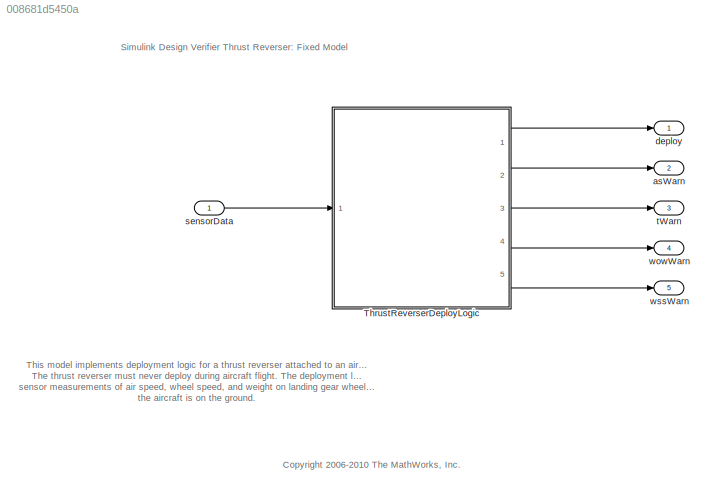
MODEL slx_008681d5450a
KIND model
CONFIG AbsTol = auto
CONFIG EnableMultiTasking = on
CONFIG FixedStep = .1
CONFIG MaxStep = auto
CONFIG MinStep = auto
CONFIG PreLoadFcn = load sldvdemo_thrust_reverse_bus.mat
CONFIG RelTol = 1e-3
CONFIG SampleTimeConstraint = Unconstrained
CONFIG Solver = FixedStepDiscrete
CONFIG SolverName = FixedStepDiscrete
CONFIG StartTime = 0.0
CONFIG StopTime = 10.0
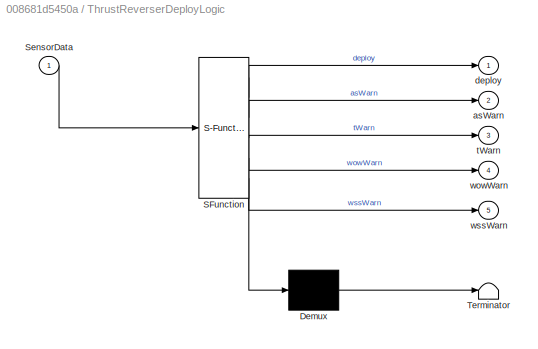
BLOCK [SubSystem] ThrustReverserDeployLogic
  ErrorFcn = Stateflow.Translate.translate
  PermitHierarchicalResolution = ExplicitOnly
  Ports = [1, 5]
  RequestExecContextInheritance = off
  SFBlockType = Chart
  TreatAsAtomicUnit = on
BLOCK [Demux] ThrustReverserDeployLogic/ Demux 
  Outputs = 1
  Ports = [1, 1]
BLOCK [S-Function] ThrustReverserDeployLogic/ SFunction 
  EnableBusSupport = on
  FunctionName = sf_sfun
  PortCounts = [1 6]
  Ports = [1, 6]
  SFcnIsStateOwnerBlock = off
  SFunctionDeploymentMode = off
  Tag = Stateflow S-Function 1
BLOCK [Terminator] ThrustReverserDeployLogic/ Terminator 
BLOCK [Inport] ThrustReverserDeployLogic/SensorData
BLOCK [Outport] ThrustReverserDeployLogic/asWarn
  Port = 2
  VectorParamsAs1DForOutWhenUnconnected = off
BLOCK [Outport] ThrustReverserDeployLogic/deploy
  VectorParamsAs1DForOutWhenUnconnected = off
BLOCK [Outport] ThrustReverserDeployLogic/tWarn
  Port = 3
  VectorParamsAs1DForOutWhenUnconnected = off
BLOCK [Outport] ThrustReverserDeployLogic/wowWarn
  Port = 4
  VectorParamsAs1DForOutWhenUnconnected = off
BLOCK [Outport] ThrustReverserDeployLogic/wssWarn
  Port = 5
  VectorParamsAs1DForOutWhenUnconnected = off
BLOCK [Outport] asWarn
  OutDataTypeStr = boolean
  Port = 2
  PortDimensions = 1
  VectorParamsAs1DForOutWhenUnconnected = off
BLOCK [Outport] deploy
  OutDataTypeStr = boolean
  PortDimensions = 1
  VectorParamsAs1DForOutWhenUnconnected = off
BLOCK [Inport] sensorData
  OutDataTypeStr = Bus: sldvThrustReverseBus
BLOCK [Outport] tWarn
  OutDataTypeStr = boolean
  Port = 3
  PortDimensions = 1
  VectorParamsAs1DForOutWhenUnconnected = off
BLOCK [Outport] wowWarn
  OutDataTypeStr = boolean
  Port = 4
  PortDimensions = 1
  VectorParamsAs1DForOutWhenUnconnected = off
BLOCK [Outport] wssWarn
  OutDataTypeStr = boolean
  Port = 5
  PortDimensions = 1
  VectorParamsAs1DForOutWhenUnconnected = off
ANNOTATION (root): <copyright redacted>
ANNOTATION (root): Simulink Design Verifier Thrust Reverser: Fixed Model
ANNOTATION (root): This model implements deployment logic for a thrust reverser attached to an aircraft engine. The thrust reverser must never deploy during aircraft flight. The deployment logic uses redundant sensor measurements of air speed, wheel speed, and weight on landing gear wheels to confirm the aircraft is on the ground.
LINE ThrustReverserDeployLogic:1 -> deploy:1
LINE ThrustReverserDeployLogic:2 -> asWarn:1
LINE ThrustReverserDeployLogic:3 -> tWarn:1
LINE ThrustReverserDeployLogic:4 -> wowWarn:1
LINE ThrustReverserDeployLogic:5 -> wssWarn:1
LINE sensorData:1 -> ThrustReverserDeployLogic:1
CHART ThrustReverserDeployLogic states=26 transitions=75
  STATE_LABEL 'thrustReversers'
  STATE_LABEL 'undeployed\nen:deploy=0;timer=0;'
  STATE_LABEL 'aboutToBeDeployed\ndu:timer++;'
  STATE_LABEL 'deployed\nen:deploy=1;'
  STATE_LABEL '[(onGround(SensorData.wowSensors) +...\n isRolling(SensorData.wheelSpeedSensors) +...\n airspeedOK(SensorData.airSpeedSensors) >=2) &&...\n throttleOK(SensorData.throttlePositions)]'
  STATE_LABEL '[timer>5]'
  STATE_LABEL '[(onGround(SensorData.wowSensors) +...\n isRolling(SensorData.wheelSpeedSensors) +...\n airspeedOK(SensorData.airSpeedSensors) <=2) ||...\n !throttleOK(SensorData.throttlePositions)]'
  STATE_LABEL '[(onGround(SensorData.wowSensors) +...\n isRolling(SensorData.wheelSpeedSensors) +...\n airspeedOK(SensorData.airSpeedSensors) <=2) ||...\n !throttleOK(SensorData.throttlePositions)]'
  STATE_LABEL 'undeployed\nen:deploy=0;timer=0;'
  STATE_LABEL 'aboutToBeDeployed\ndu:timer++;'
  STATE_LABEL 'deployed\nen:deploy=1;'
  STATE_LABEL 'og = onGround(ww)'
  STATE_LABEL '{\n/* 1st weight on wheel sensor for left gear */\naVarTruthTableCondition_1 = (ww[1]);\n}'
  STATE_LABEL '{\n/* 2nd weight on wheel sensor for left gear */\naVarTruthTableCondition_2 = (ww[2]);\n}'
  STATE_LABEL '{\n/* 1st weight on wheel sensor for right gear */\naVarTruthTableCondition_3 = (ww[3]);\n}'
  STATE_LABEL '{\n/* 2nd weight on wheel sensor for right gear */\naVarTruthTableCondition_4 = (ww[4]);\n}'
  STATE_LABEL '[aVarTruthTableCondition_1 && aVarTruthTableCondition_2 && aVarTruthTableCondition_3 && aVarTruthTableCondition_4]'
  STATE_LABEL '{\n/* Wheels are on the ground */\nog = 1;\n}'
  STATE_LABEL '[!aVarTruthTableCondition_1 && !aVarTruthTableCondition_2 && !aVarTruthTableCondition_3 && !aVarTruthTableCondition_4]'
  STATE_LABEL '{\n/* Wheels are not on the ground */\nog = 0;\n}'
  STATE_LABEL '[aVarTruthTableCondition_1 && aVarTruthTableCondition_2]'
  STATE_LABEL '{\n/* Wheels are on the ground */\nog = 1;\n}'
  STATE_LABEL '{\n/* Broadcast warning that sensors do not all agree */\nsend(wowE,warnings)\n}'
  STATE_LABEL '[aVarTruthTableCondition_3 && aVarTruthTableCondition_4]'
  STATE_LABEL '{\n/* Wheels are on the ground */\nog = 1;\n}'
  STATE_LABEL '{\n/* Broadcast warning that sensors do not all agree */\nsend(wowE,warnings)\n}'
  STATE_LABEL '/* Default */'
  STATE_LABEL '{\n/* Wheels are not on the ground */\nog = 0;\n}'
  STATE_LABEL '{\n/* Broadcast warning that sensors do not all agree */\nsend(wowE,warnings)\n}'
  STATE_LABEL 'ir=isRolling(ws)'
  STATE_LABEL 'WST = Wheel Speed Threshold'
  STATE_LABEL 'I assume that a "bad" wheel speed\nsensor gives a value of 0...?'
  STATE_LABEL '[ws[1]<WST && ws[2]<WST]'
  STATE_LABEL '[ws[1]>=WST && ws[2]>=WST]'
  STATE_LABEL '{send(wssE,warnings)}'
  STATE_LABEL '{ir=1;}'
  STATE_LABEL '{ir=0;}'
  STATE_LABEL 'WST = Wheel Speed Threshold'
  STATE_LABEL 'I assume that a "bad" wheel speed\nsensor gives a value of 0...?'
  STATE_LABEL 'warnings'
CHART  states=0 transitions=0
